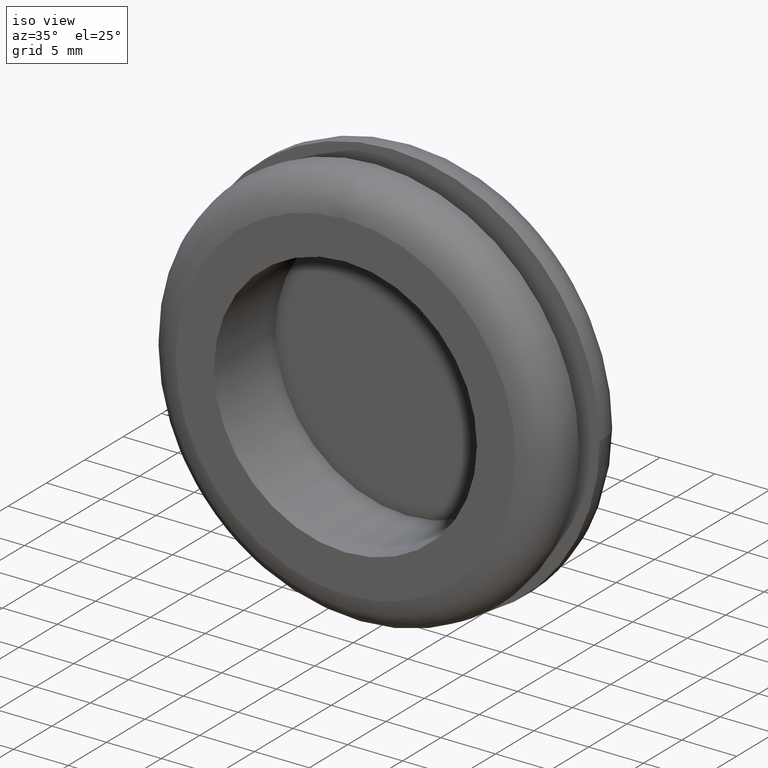
[diagram: clean part render]
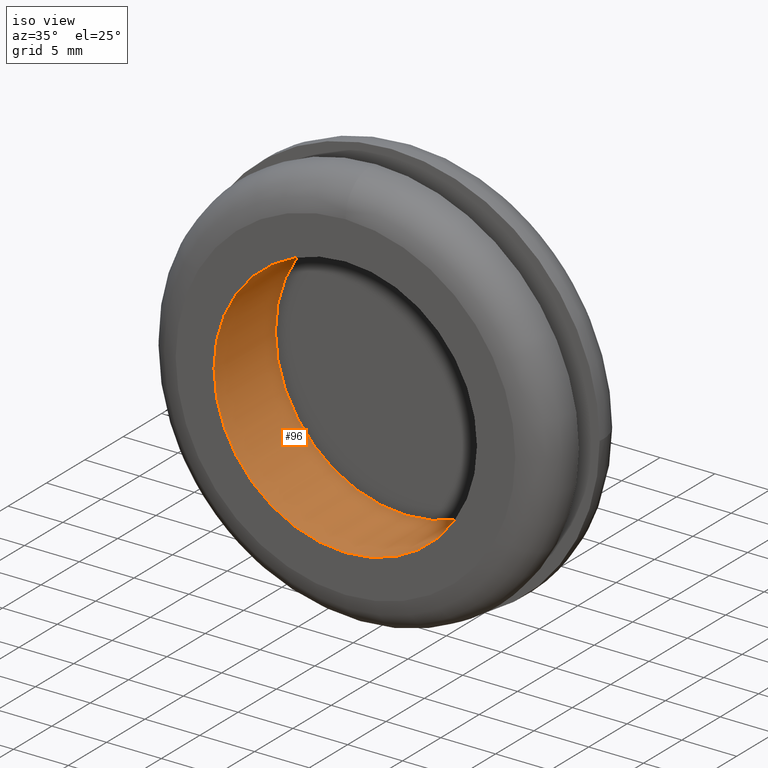
[diagram: same view with one face highlighted and labeled with its STEP entity id]
A machine part, iso view. The second image highlights one B-rep face of the part: STEP entity #96.
In plain terms, the highlighted cylindrical surface (bore or boss wall) has radius 12 mm, axis along (0, 1, 0).
Its self-contained STEP definition (entity closure, byte-faithful):
#22=FACE_BOUND('',#39,.T.);
#29=FACE_OUTER_BOUND('',#38,.T.);
#38=EDGE_LOOP('',(#78));
#39=EDGE_LOOP('',(#79));
#54=CIRCLE('',#108,12.);
#55=CIRCLE('',#109,12.);
#62=VERTEX_POINT('',#162);
#63=VERTEX_POINT('',#164);
#70=EDGE_CURVE('',#62,#62,#54,.T.);
#71=EDGE_CURVE('',#63,#63,#55,.T.);
#78=ORIENTED_EDGE('',*,*,#70,.T.);
#79=ORIENTED_EDGE('',*,*,#71,.F.);
#94=CYLINDRICAL_SURFACE('',#107,12.);
#96=ADVANCED_FACE('',(#29,#22),#94,.F.);
#107=AXIS2_PLACEMENT_3D('',#161,#126,#127);
#108=AXIS2_PLACEMENT_3D('',#163,#128,#129);
#109=AXIS2_PLACEMENT_3D('',#165,#130,#131);
#126=DIRECTION('center_axis',(0.,1.,0.));
#127=DIRECTION('ref_axis',(-1.,0.,0.));
#128=DIRECTION('center_axis',(0.,1.,0.));
#129=DIRECTION('ref_axis',(-1.,0.,0.));
#130=DIRECTION('center_axis',(0.,1.,0.));
#131=DIRECTION('ref_axis',(-1.,0.,0.));
#161=CARTESIAN_POINT('Origin',(0.,-6.,0.));
#162=CARTESIAN_POINT('',(12.,2.,1.46957615897682E-15));
#163=CARTESIAN_POINT('Origin',(0.,2.,0.));
#164=CARTESIAN_POINT('',(12.,-6.,1.46957615897682E-15));
#165=CARTESIAN_POINT('Origin',(0.,-6.,0.));